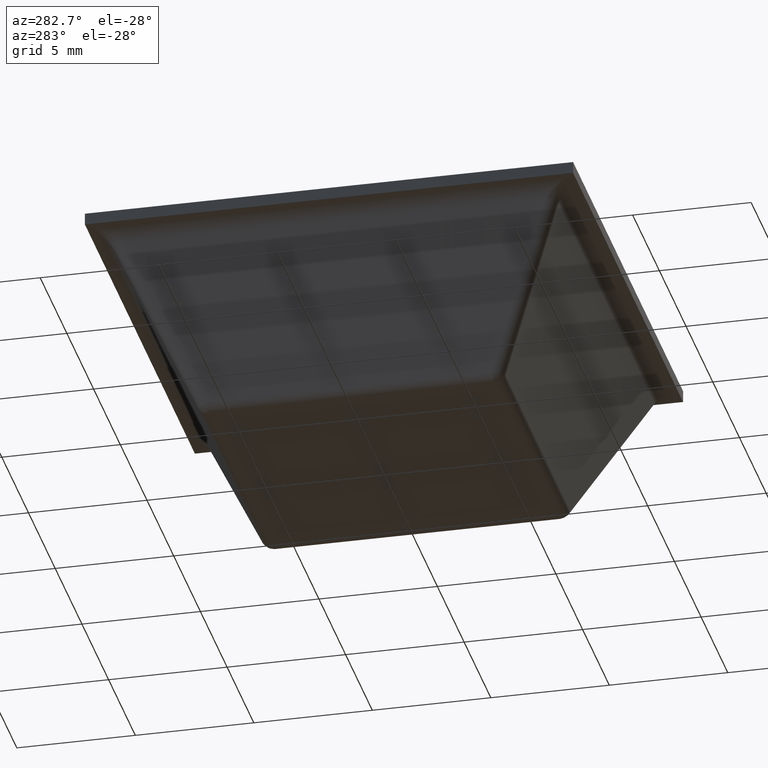
[diagram: clean part render]
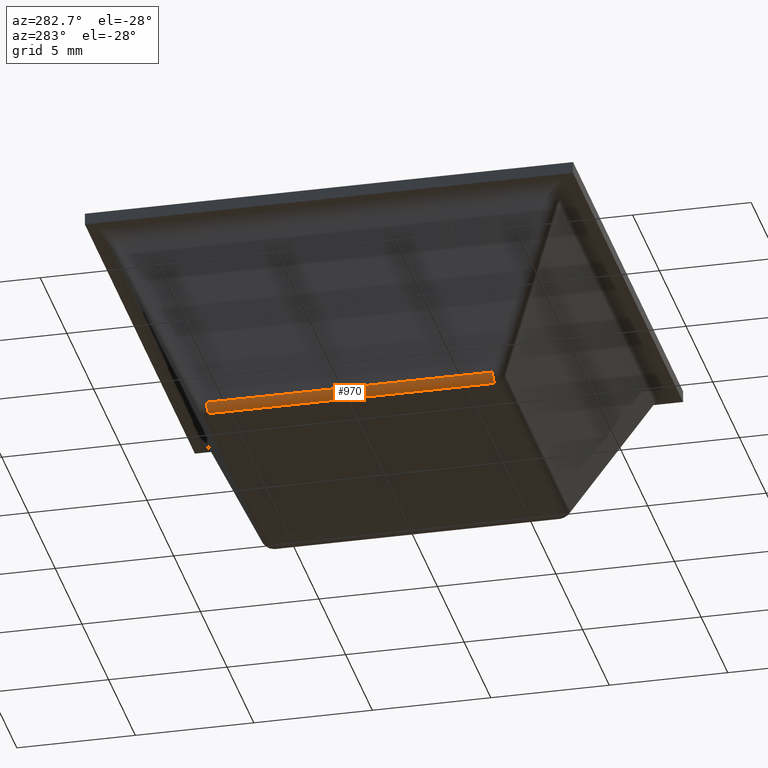
[diagram: same view with one face highlighted and labeled with its STEP entity id]
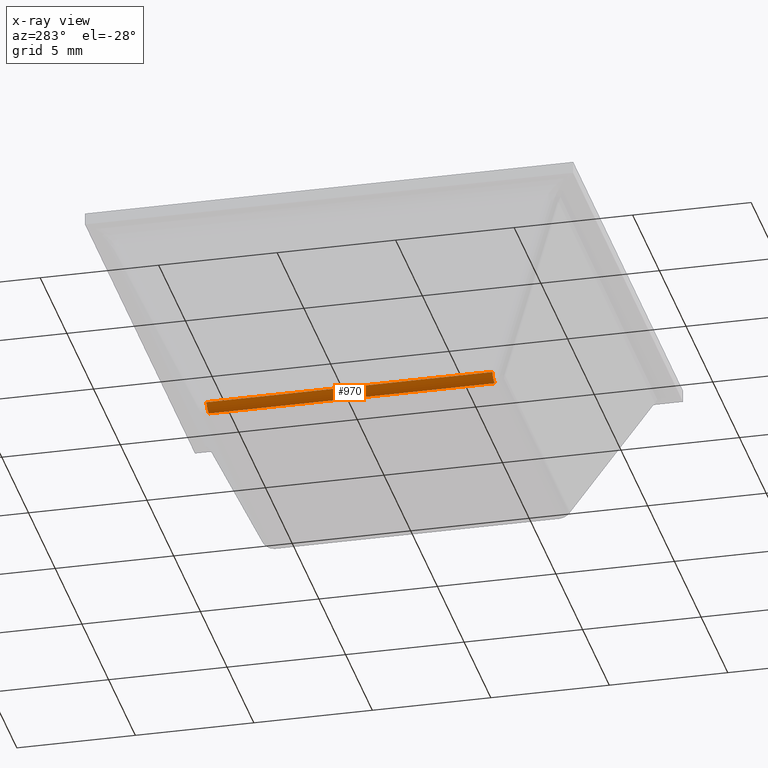
[diagram: x-ray of the same camera — body ghosted, the highlighted face saturated]
A machine part, auxiliary view. The second image highlights one B-rep face of the part: STEP entity #970.
The next image is the same camera in x-ray: the body ghosted, the highlighted face saturated — about 0% of this face is hidden behind the body in this view.
In plain terms, the highlighted face is a freeform B-spline surface patch.
Its self-contained STEP definition (entity closure, byte-faithful):
#249=CARTESIAN_POINT('',(-6.031465045455790,-6.031465045455790,0.0));
#250=VERTEX_POINT('',#249);
#251=CARTESIAN_POINT('',(-6.484618936203209,-6.031465045455819,0.288690863187422));
#252=VERTEX_POINT('',#251);
#253=CARTESIAN_POINT('',(-6.031465045455790,-6.031465045455790,0.0));
#254=CARTESIAN_POINT('',(-6.350000171250765,-6.031465045455790,0.0));
#255=CARTESIAN_POINT('',(-6.484618936203209,-6.031465045455819,0.288690863187422));
#263=(BOUNDED_CURVE()B_SPLINE_CURVE(2,(#253,#254,#255),.UNSPECIFIED.,.F.,.U.)CURVE()GEOMETRIC_REPRESENTATION_ITEM()QUASI_UNIFORM_CURVE()RATIONAL_B_SPLINE_CURVE((1.0,0.843391449335703,1.0))REPRESENTATION_ITEM(''));
#264=EDGE_CURVE('',#250,#252,#263,.T.);
#502=CARTESIAN_POINT('',(-6.484618936203209,6.031465045455819,0.288690863187422));
#503=VERTEX_POINT('',#502);
#555=CARTESIAN_POINT('',(-6.031465045455790,6.031465045455790,0.0));
#556=VERTEX_POINT('',#555);
#570=CARTESIAN_POINT('',(-6.484618936203209,6.031465045455819,0.288690863187422));
#571=CARTESIAN_POINT('',(-6.350000171250765,6.031465045455789,0.0));
#572=CARTESIAN_POINT('',(-6.031465045455790,6.031465045455790,0.0));
#580=(BOUNDED_CURVE()B_SPLINE_CURVE(2,(#570,#571,#572),.UNSPECIFIED.,.F.,.U.)CURVE()GEOMETRIC_REPRESENTATION_ITEM()QUASI_UNIFORM_CURVE()RATIONAL_B_SPLINE_CURVE((1.0,0.843391449335702,1.0))REPRESENTATION_ITEM(''));
#581=EDGE_CURVE('',#503,#556,#580,.T.);
#942=CARTESIAN_POINT('',(-6.018376571301853,6.333038297728612,0.000171337512222));
#943=CARTESIAN_POINT('',(-6.018376571301853,-6.340577629035431,0.000171337512222));
#944=CARTESIAN_POINT('',(-6.361899293593015,6.333038297728613,-0.008824121550929));
#945=CARTESIAN_POINT('',(-6.361899293593015,-6.340577629035431,-0.008824121550929));
#946=CARTESIAN_POINT('',(-6.493404811711433,6.333038297728612,0.308658283817454));
#947=CARTESIAN_POINT('',(-6.493404811711433,-6.340577629035431,0.308658283817454));
#955=(BOUNDED_SURFACE()B_SPLINE_SURFACE(1,2,((#942,#944,#946),(#943,#945,#947)),.UNSPECIFIED.,.F.,.F.,.U.)B_SPLINE_SURFACE_WITH_KNOTS((2,2),(3,3),(0.0,12.673615926764040),(0.0,1.0),.UNSPECIFIED.)GEOMETRIC_REPRESENTATION_ITEM()RATIONAL_B_SPLINE_SURFACE(((1.0,0.824126188622016,1.0),(1.0,0.824126188622016,1.0)))REPRESENTATION_ITEM('')SURFACE());
#956=CARTESIAN_POINT('',(-6.484618936203209,6.031465045455819,0.288690863187422));
#957=CARTESIAN_POINT('',(-6.484618936203209,-6.031465045455819,0.288690863187422));
#958=QUASI_UNIFORM_CURVE('',1,(#956,#957),.UNSPECIFIED.,.F.,.U.);
#959=EDGE_CURVE('',#503,#252,#958,.T.);
#960=ORIENTED_EDGE('',*,*,#959,.F.);
#961=ORIENTED_EDGE('',*,*,#581,.T.);
#962=CARTESIAN_POINT('',(-6.031465045455790,-6.031465045455790,0.0));
#963=CARTESIAN_POINT('',(-6.031465045455790,6.031465045455790,0.0));
#964=QUASI_UNIFORM_CURVE('',1,(#962,#963),.UNSPECIFIED.,.F.,.U.);
#965=EDGE_CURVE('',#250,#556,#964,.T.);
#966=ORIENTED_EDGE('',*,*,#965,.F.);
#967=ORIENTED_EDGE('',*,*,#264,.T.);
#968=EDGE_LOOP('',(#960,#961,#966,#967));
#969=FACE_OUTER_BOUND('',#968,.T.);
#970=ADVANCED_FACE('',(#969),#955,.T.);